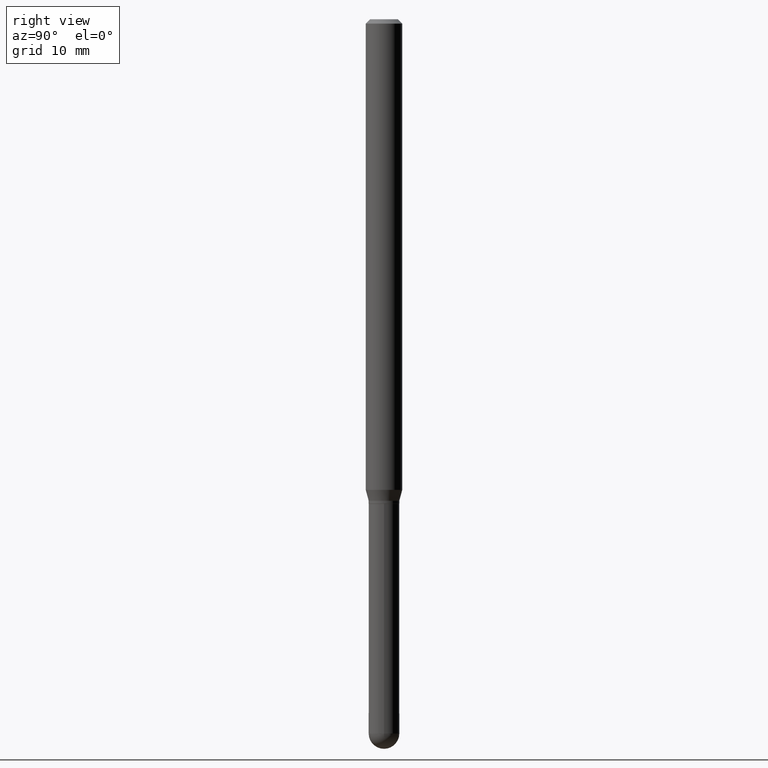
[diagram: clean part render]
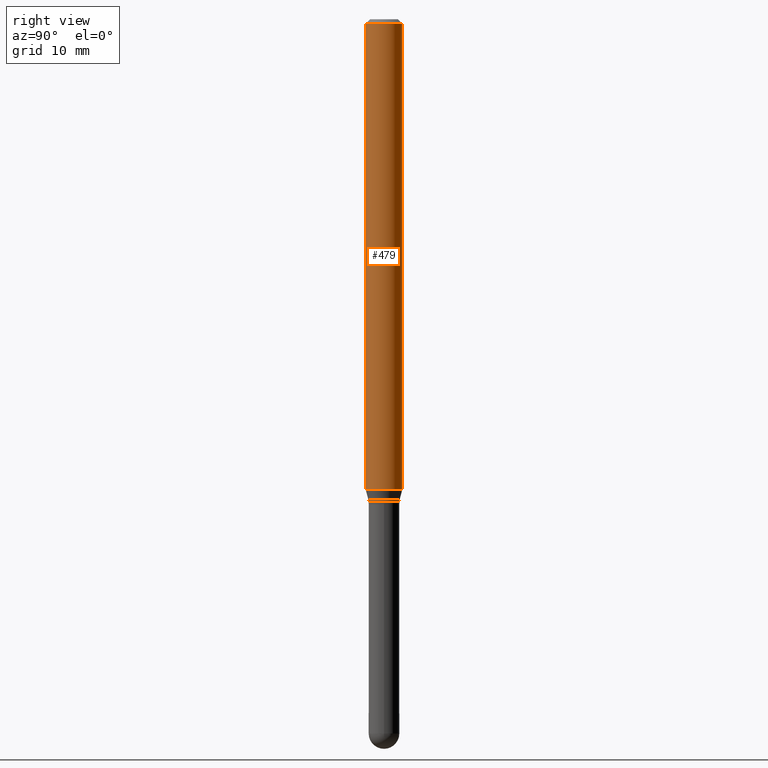
[diagram: same view with one face highlighted and labeled with its STEP entity id]
A machine part, right view. The second image highlights one B-rep face of the part: STEP entity #479.
In plain terms, the highlighted cylindrical surface (edge-blend (fillet) strip) has radius 1.5875 mm, axis along (-0, 0, 1).
Its self-contained STEP definition (entity closure, byte-faithful):
#12 = EDGE_CURVE ( 'NONE', #283, #255, #172, .T. ) ;
#19 = AXIS2_PLACEMENT_3D ( 'NONE', #315, #195, #354 ) ;
#23 = ORIENTED_EDGE ( 'NONE', *, *, #33, .T. ) ;
#33 = EDGE_CURVE ( 'NONE', #283, #342, #436, .T. ) ;
#39 = CYLINDRICAL_SURFACE ( 'NONE', #19, 0.06250000000000000000 ) ;
#42 = EDGE_CURVE ( 'NONE', #342, #452, #103, .T. ) ;
#61 = DIRECTION ( 'NONE',  ( -6.982962677686265922E-15, -1.000000000000000000, 4.370956789862821150E-15 ) ) ;
#69 = AXIS2_PLACEMENT_3D ( 'NONE', #181, #193, #347 ) ;
#99 = CARTESIAN_POINT ( 'NONE',  ( 4.440892098501022564E-16, 0.06249999999999995143, -0.01500000000000022669 ) ) ;
#103 = LINE ( 'NONE', #369, #281 ) ;
#168 = DIRECTION ( 'NONE',  ( -2.445364304040584784E-29, 3.491630991862036470E-15, 1.000000000000000000 ) ) ;
#170 = CARTESIAN_POINT ( 'NONE',  ( 4.440892098501021578E-16, 0.06249999999999439337, -1.612679491924312591 ) ) ;
#172 = LINE ( 'NONE', #473, #419 ) ;
#179 = EDGE_LOOP ( 'NONE', ( #23, #456, #414, #505 ) ) ;
#181 = CARTESIAN_POINT ( 'NONE',  ( 3.668046456060879803E-31, -5.237446487793057096E-17, -0.01500000000000000812 ) ) ;
#191 = EDGE_CURVE ( 'NONE', #255, #452, #341, .T. ) ;
#193 = DIRECTION ( 'NONE',  ( -2.445364304040584784E-29, 3.491630991862036470E-15, 1.000000000000000000 ) ) ;
#195 = DIRECTION ( 'NONE',  ( -2.445364304040584784E-29, 3.491630991862036470E-15, 1.000000000000000000 ) ) ;
#255 = VERTEX_POINT ( 'NONE', #491 ) ;
#256 = DIRECTION ( 'NONE',  ( -2.445364304040584503E-29, 3.491630991862036470E-15, 1.000000000000000000 ) ) ;
#281 = VECTOR ( 'NONE', #256, 39.37007874015748143 ) ;
#283 = VERTEX_POINT ( 'NONE', #494 ) ;
#313 = FACE_OUTER_BOUND ( 'NONE', #179, .T. ) ;
#315 = CARTESIAN_POINT ( 'NONE',  ( 0.000000000000000000, 0.000000000000000000, 0.000000000000000000 ) ) ;
#340 = DIRECTION ( 'NONE',  ( -2.445364304040584503E-29, 3.491630991862036470E-15, 1.000000000000000000 ) ) ;
#341 = CIRCLE ( 'NONE', #69, 0.06250000000000000000 ) ;
#342 = VERTEX_POINT ( 'NONE', #170 ) ;
#346 = CARTESIAN_POINT ( 'NONE',  ( 3.943588863410019846E-29, -5.630881693943251588E-15, -1.612679491924312369 ) ) ;
#347 = DIRECTION ( 'NONE',  ( -6.982962677686265922E-15, -1.000000000000000000, 3.483106191921935554E-15 ) ) ;
#354 = DIRECTION ( 'NONE',  ( -6.982962677686265922E-15, -1.000000000000000000, 3.491630991862036470E-15 ) ) ;
#369 = CARTESIAN_POINT ( 'NONE',  ( 4.440892098500625669E-16, 0.06250000000000000000, -2.182269369913772794E-16 ) ) ;
#382 = AXIS2_PLACEMENT_3D ( 'NONE', #346, #168, #61 ) ;
#414 = ORIENTED_EDGE ( 'NONE', *, *, #191, .F. ) ;
#419 = VECTOR ( 'NONE', #340, 39.37007874015748143 ) ;
#436 = CIRCLE ( 'NONE', #382, 0.06250000000000000000 ) ;
#452 = VERTEX_POINT ( 'NONE', #99 ) ;
#456 = ORIENTED_EDGE ( 'NONE', *, *, #42, .T. ) ;
#473 = CARTESIAN_POINT ( 'NONE',  ( -4.364351673553916201E-16, -0.06250000000000000000, 2.182269369913772794E-16 ) ) ;
#479 = ADVANCED_FACE ( 'NONE', ( #313 ), #39, .T. ) ;
#491 = CARTESIAN_POINT ( 'NONE',  ( -4.364351673553912750E-16, -0.06250000000000005551, -0.01499999999999979128 ) ) ;
#494 = CARTESIAN_POINT ( 'NONE',  ( -4.364351673553520291E-16, -0.06250000000000560663, -1.612679491924311925 ) ) ;
#505 = ORIENTED_EDGE ( 'NONE', *, *, #12, .F. ) ;